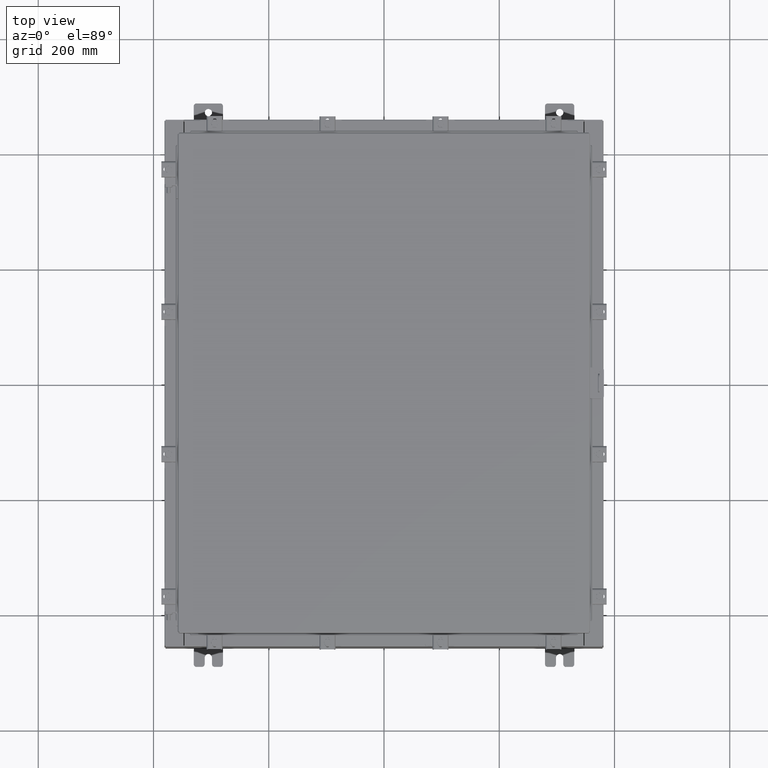
[diagram: clean part render]
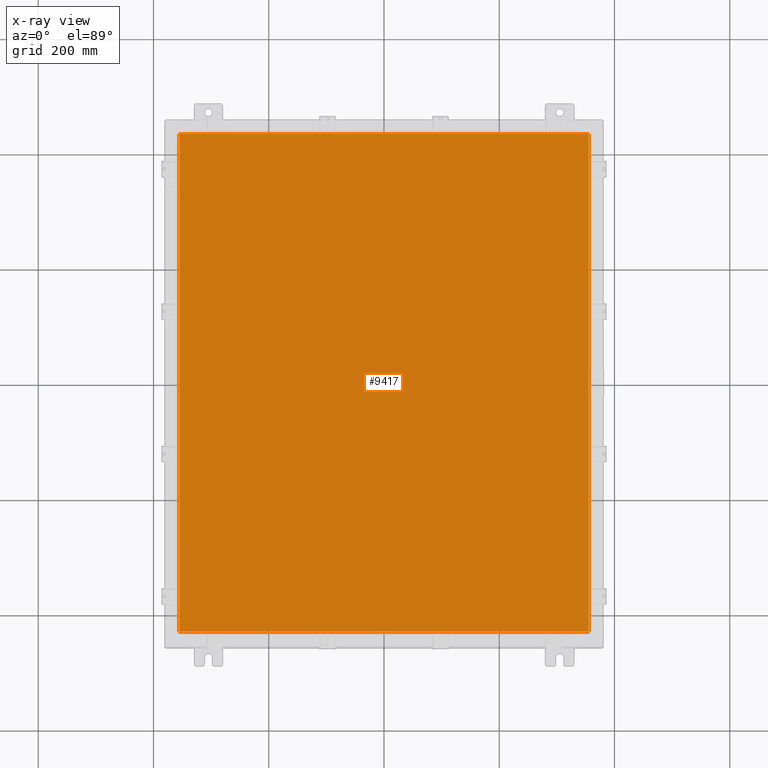
[diagram: x-ray — body ghosted, one internal face saturated and labeled with its STEP entity id]
A machine part, top view, then the same camera in x-ray: the body is ghosted and one INTERNAL B-rep face — a face not visible from any outside direction — is saturated and labeled: STEP entity #9417.
In plain terms, the highlighted planar face has unit normal (0, 0, -1).
Its self-contained STEP definition (entity closure, byte-faithful):
#133 = VECTOR ( 'NONE', #17094, 39.37007874015748100 ) ;
#378 = VECTOR ( 'NONE', #14332, 39.37007874015748100 ) ;
#1424 = EDGE_LOOP ( 'NONE', ( #14335, #21370, #6468, #23953 ) ) ;
#2056 = CARTESIAN_POINT ( 'NONE',  ( 0.0000000000000000000, 0.0000000000000000000, -0.07470000000000015500 ) ) ;
#2682 = FACE_OUTER_BOUND ( 'NONE', #1424, .T. ) ;
#3110 = VERTEX_POINT ( 'NONE', #17860 ) ;
#3866 = CARTESIAN_POINT ( 'NONE',  ( 13.99029999999999600, 17.00629999999999600, -0.07469999999999907300 ) ) ;
#3877 = VECTOR ( 'NONE', #13386, 39.37007874015748100 ) ;
#4312 = VERTEX_POINT ( 'NONE', #21216 ) ;
#4840 = AXIS2_PLACEMENT_3D ( 'NONE', #2056, #7787, #20992 ) ;
#6247 = CARTESIAN_POINT ( 'NONE',  ( -13.99029999999999800, -17.00630000000000300, -0.07470000000000015500 ) ) ;
#6468 = ORIENTED_EDGE ( 'NONE', *, *, #8001, .F. ) ;
#6961 = EDGE_CURVE ( 'NONE', #9571, #12262, #17846, .T. ) ;
#7787 = DIRECTION ( 'NONE',  ( 0.0000000000000000000, 0.0000000000000000000, -1.000000000000000000 ) ) ;
#8001 = EDGE_CURVE ( 'NONE', #3110, #9571, #18985, .T. ) ;
#8207 = CARTESIAN_POINT ( 'NONE',  ( -13.99030000000000000, -17.00630000000000300, -0.07470000000000015500 ) ) ;
#9417 = ADVANCED_FACE ( 'NONE', ( #2682 ), #19119, .T. ) ;
#9571 = VERTEX_POINT ( 'NONE', #8207 ) ;
#9600 = CARTESIAN_POINT ( 'NONE',  ( -13.99030000000000000, 17.00630000000000000, -0.07470000000000015500 ) ) ;
#10052 = DIRECTION ( 'NONE',  ( 1.000000000000000000, -0.0000000000000000000, -0.0000000000000000000 ) ) ;
#10586 = CARTESIAN_POINT ( 'NONE',  ( 13.99029999999999800, -17.00630000000000700, -0.07470000000000015500 ) ) ;
#12262 = VERTEX_POINT ( 'NONE', #16682 ) ;
#13386 = DIRECTION ( 'NONE',  ( 0.0000000000000000000, -1.000000000000000000, 0.0000000000000000000 ) ) ;
#14332 = DIRECTION ( 'NONE',  ( 0.0000000000000000000, 1.000000000000000000, 0.0000000000000000000 ) ) ;
#14335 = ORIENTED_EDGE ( 'NONE', *, *, #22446, .F. ) ;
#14636 = LINE ( 'NONE', #3866, #133 ) ;
#15497 = LINE ( 'NONE', #10586, #378 ) ;
#16682 = CARTESIAN_POINT ( 'NONE',  ( 13.99029999999999800, -17.00630000000000300, -0.07470000000000015500 ) ) ;
#17094 = DIRECTION ( 'NONE',  ( -1.000000000000000000, -0.0000000000000000000, -0.0000000000000000000 ) ) ;
#17846 = LINE ( 'NONE', #6247, #21661 ) ;
#17860 = CARTESIAN_POINT ( 'NONE',  ( -13.99030000000000000, 17.00629999999999600, -0.07470000000000015500 ) ) ;
#18985 = LINE ( 'NONE', #9600, #3877 ) ;
#19119 = PLANE ( 'NONE',  #4840 ) ;
#20992 = DIRECTION ( 'NONE',  ( -1.000000000000000000, 0.0000000000000000000, -0.0000000000000000000 ) ) ;
#21216 = CARTESIAN_POINT ( 'NONE',  ( 13.99029999999999800, 17.00629999999999600, -0.07470000000000015500 ) ) ;
#21370 = ORIENTED_EDGE ( 'NONE', *, *, #6961, .F. ) ;
#21661 = VECTOR ( 'NONE', #10052, 39.37007874015748100 ) ;
#22446 = EDGE_CURVE ( 'NONE', #12262, #4312, #15497, .T. ) ;
#23953 = ORIENTED_EDGE ( 'NONE', *, *, #24280, .F. ) ;
#24280 = EDGE_CURVE ( 'NONE', #4312, #3110, #14636, .T. ) ;